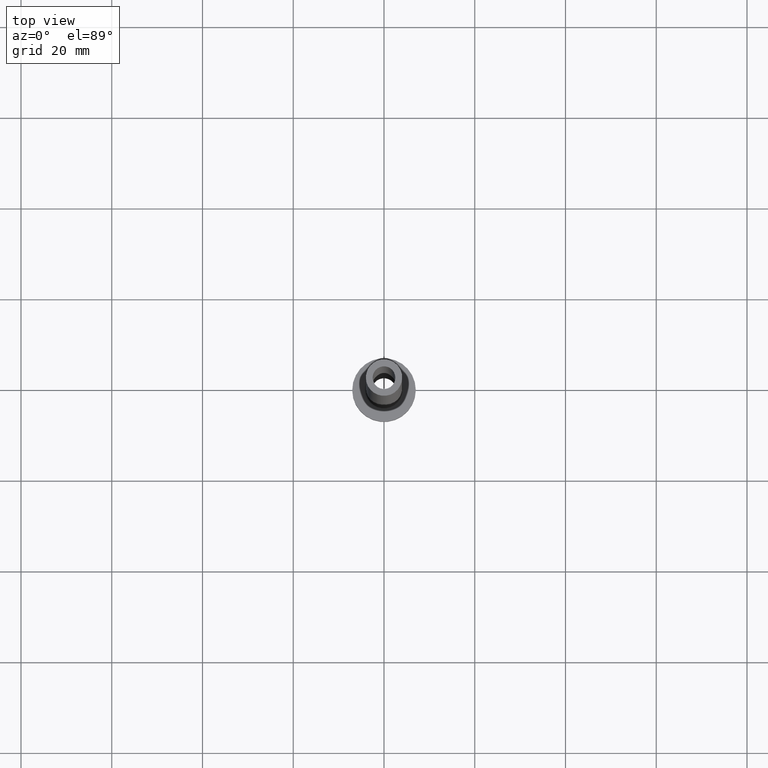
[diagram: clean part render]
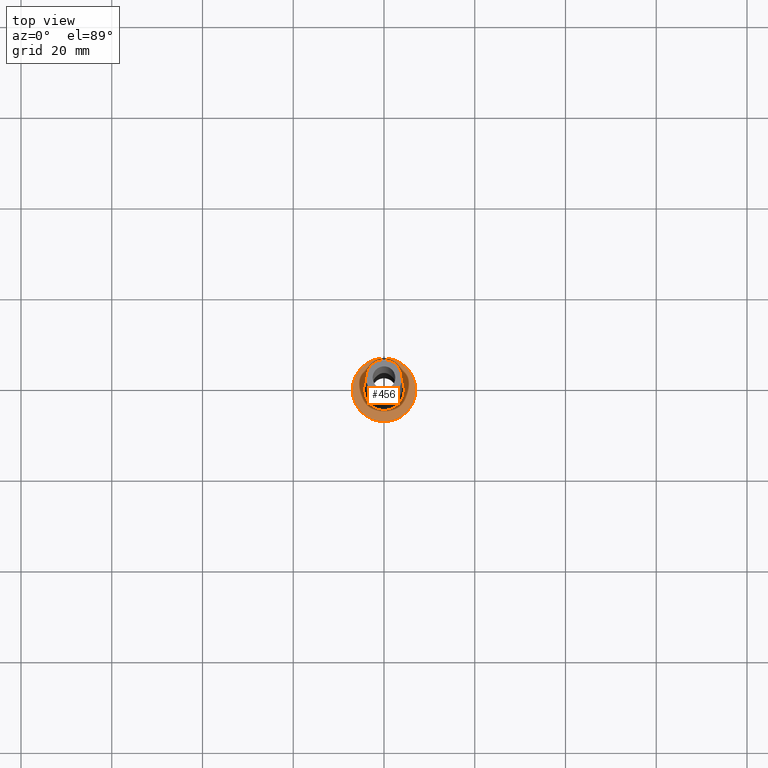
[diagram: same view with one face highlighted and labeled with its STEP entity id]
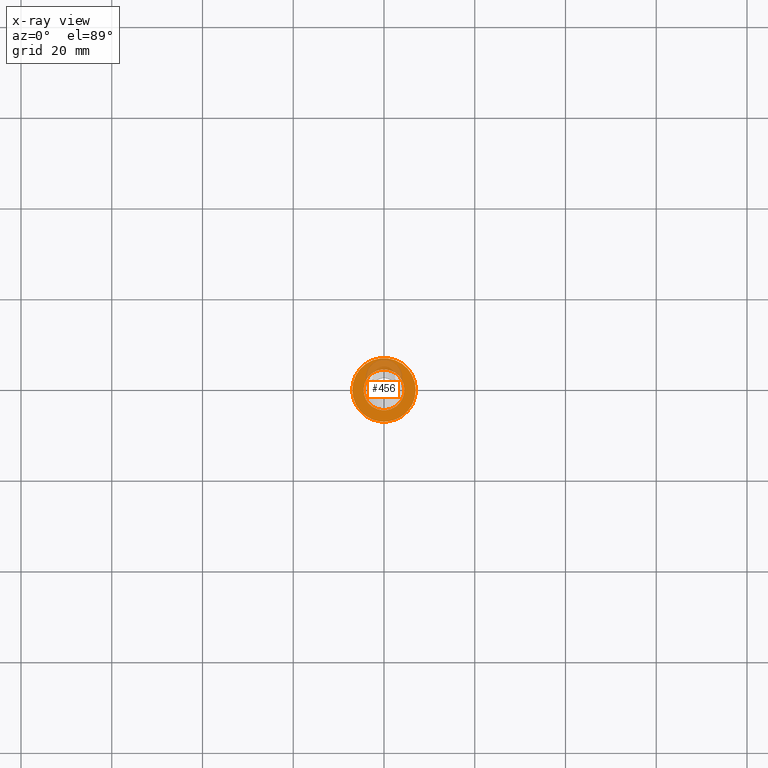
[diagram: x-ray of the same camera — body ghosted, the highlighted face saturated]
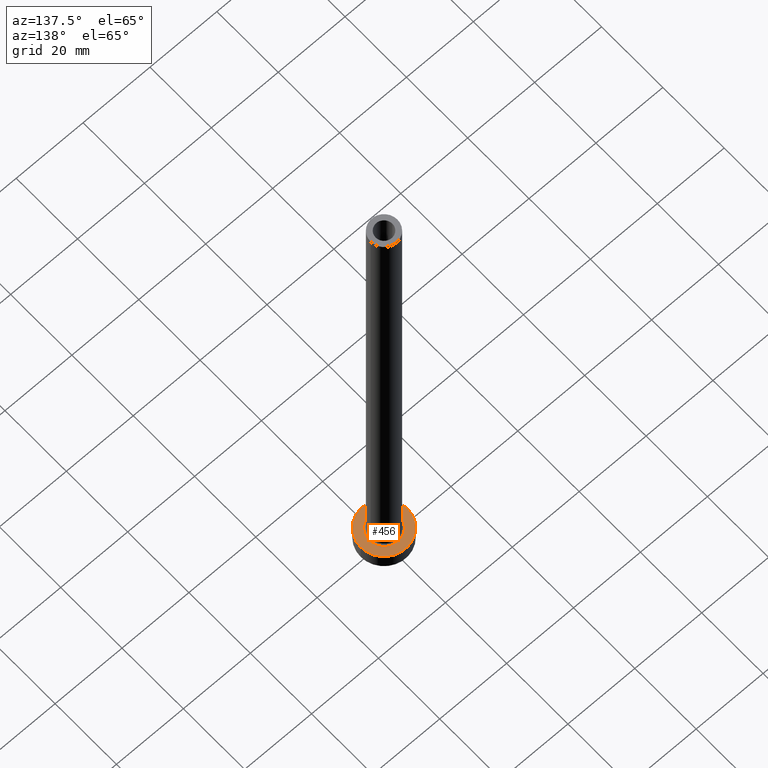
[diagram: same view with one face highlighted and labeled with its STEP entity id]
A machine part, top view. The second image highlights one B-rep face of the part: STEP entity #456.
The next image is the same camera in x-ray: the body ghosted, the highlighted face saturated — about 18% of this face is hidden behind the body in this view.
A second angle (auxiliary view) of the same face is appended — the face is thin or edge-on in the first view.
In plain terms, the highlighted planar face has unit normal (0, 0, 1).
Its self-contained STEP definition (entity closure, byte-faithful):
#8 = VERTEX_POINT ( 'NONE', #81 ) ;
#16 = CIRCLE ( 'NONE', #435, 7.000000000000000000 ) ;
#26 = DIRECTION ( 'NONE',  ( 1.000000000000000000, 0.000000000000000000, 0.000000000000000000 ) ) ;
#36 = CIRCLE ( 'NONE', #203, 4.500000000000000888 ) ;
#38 = CARTESIAN_POINT ( 'NONE',  ( 0.000000000000000000, 0.000000000000000000, 5.000000000000000000 ) ) ;
#44 = DIRECTION ( 'NONE',  ( 0.000000000000000000, 0.000000000000000000, 1.000000000000000000 ) ) ;
#45 = ORIENTED_EDGE ( 'NONE', *, *, #107, .T. ) ;
#51 = AXIS2_PLACEMENT_3D ( 'NONE', #278, #422, #419 ) ;
#64 = CARTESIAN_POINT ( 'NONE',  ( 0.000000000000000000, 0.000000000000000000, 5.000000000000000000 ) ) ;
#78 = VERTEX_POINT ( 'NONE', #263 ) ;
#80 = DIRECTION ( 'NONE',  ( 1.000000000000000000, 0.000000000000000000, 0.000000000000000000 ) ) ;
#81 = CARTESIAN_POINT ( 'NONE',  ( -7.000000000000000000, 0.000000000000000000, 5.000000000000000000 ) ) ;
#83 = EDGE_CURVE ( 'NONE', #8, #78, #16, .T. ) ;
#91 = AXIS2_PLACEMENT_3D ( 'NONE', #38, #380, #80 ) ;
#97 = CIRCLE ( 'NONE', #51, 4.500000000000000888 ) ;
#104 = VERTEX_POINT ( 'NONE', #362 ) ;
#107 = EDGE_CURVE ( 'NONE', #209, #104, #36, .T. ) ;
#136 = CIRCLE ( 'NONE', #91, 7.000000000000000000 ) ;
#165 = EDGE_CURVE ( 'NONE', #104, #209, #97, .T. ) ;
#175 = EDGE_LOOP ( 'NONE', ( #222, #45 ) ) ;
#184 = DIRECTION ( 'NONE',  ( 1.000000000000000000, 0.000000000000000000, 0.000000000000000000 ) ) ;
#203 = AXIS2_PLACEMENT_3D ( 'NONE', #64, #266, #26 ) ;
#209 = VERTEX_POINT ( 'NONE', #411 ) ;
#222 = ORIENTED_EDGE ( 'NONE', *, *, #165, .T. ) ;
#263 = CARTESIAN_POINT ( 'NONE',  ( 7.000000000000000000, 8.572527594031473190E-16, 5.000000000000000000 ) ) ;
#265 = ORIENTED_EDGE ( 'NONE', *, *, #324, .T. ) ;
#266 = DIRECTION ( 'NONE',  ( -0.000000000000000000, -0.000000000000000000, -1.000000000000000000 ) ) ;
#273 = CARTESIAN_POINT ( 'NONE',  ( 0.000000000000000000, 0.000000000000000000, 5.000000000000000000 ) ) ;
#276 = DIRECTION ( 'NONE',  ( 0.000000000000000000, 0.000000000000000000, 1.000000000000000000 ) ) ;
#278 = CARTESIAN_POINT ( 'NONE',  ( 0.000000000000000000, 0.000000000000000000, 5.000000000000000000 ) ) ;
#309 = ORIENTED_EDGE ( 'NONE', *, *, #83, .T. ) ;
#311 = FACE_OUTER_BOUND ( 'NONE', #442, .T. ) ;
#321 = CARTESIAN_POINT ( 'NONE',  ( 0.000000000000000000, 0.000000000000000000, 5.000000000000000000 ) ) ;
#324 = EDGE_CURVE ( 'NONE', #78, #8, #136, .T. ) ;
#327 = AXIS2_PLACEMENT_3D ( 'NONE', #273, #276, #379 ) ;
#328 = FACE_BOUND ( 'NONE', #175, .T. ) ;
#362 = CARTESIAN_POINT ( 'NONE',  ( 4.500000000000000888, 0.000000000000000000, 5.000000000000002665 ) ) ;
#379 = DIRECTION ( 'NONE',  ( 1.000000000000000000, 0.000000000000000000, -0.000000000000000000 ) ) ;
#380 = DIRECTION ( 'NONE',  ( 0.000000000000000000, 0.000000000000000000, 1.000000000000000000 ) ) ;
#411 = CARTESIAN_POINT ( 'NONE',  ( -4.500000000000000888, 5.510910596163088569E-16, 5.000000000000002665 ) ) ;
#419 = DIRECTION ( 'NONE',  ( 1.000000000000000000, 0.000000000000000000, 0.000000000000000000 ) ) ;
#422 = DIRECTION ( 'NONE',  ( -0.000000000000000000, -0.000000000000000000, -1.000000000000000000 ) ) ;
#424 = PLANE ( 'NONE',  #327 ) ;
#435 = AXIS2_PLACEMENT_3D ( 'NONE', #321, #44, #184 ) ;
#442 = EDGE_LOOP ( 'NONE', ( #309, #265 ) ) ;
#456 = ADVANCED_FACE ( 'NONE', ( #328, #311 ), #424, .T. ) ;